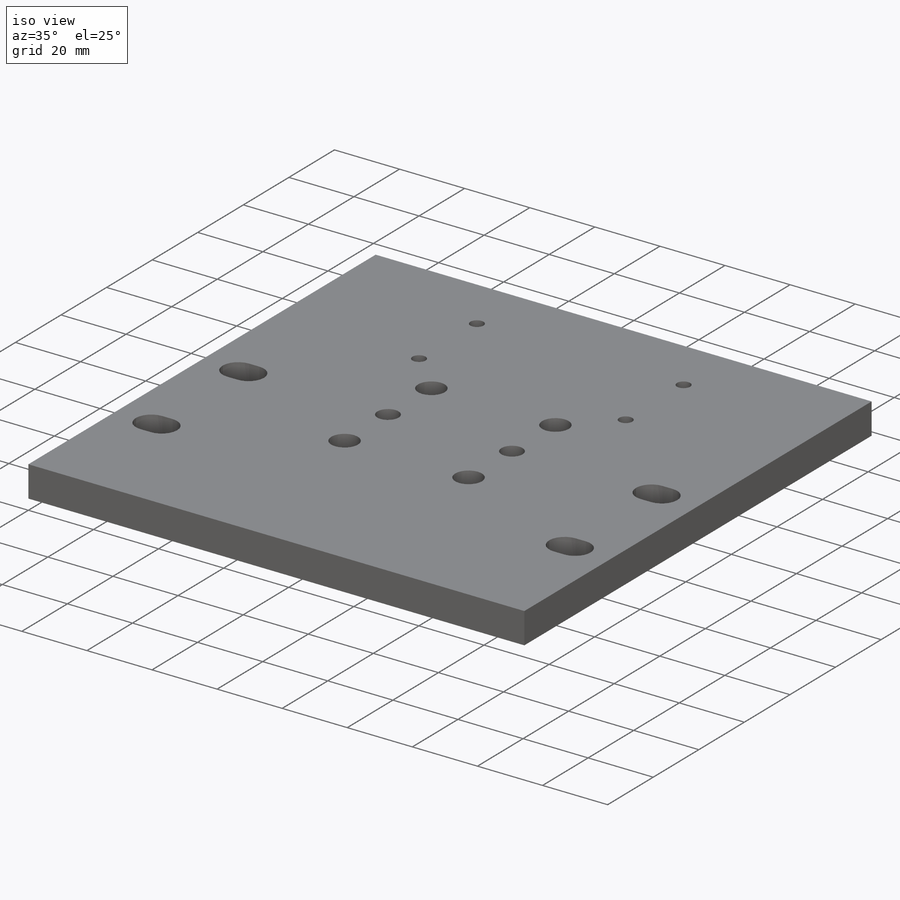
[diagram: iso view]
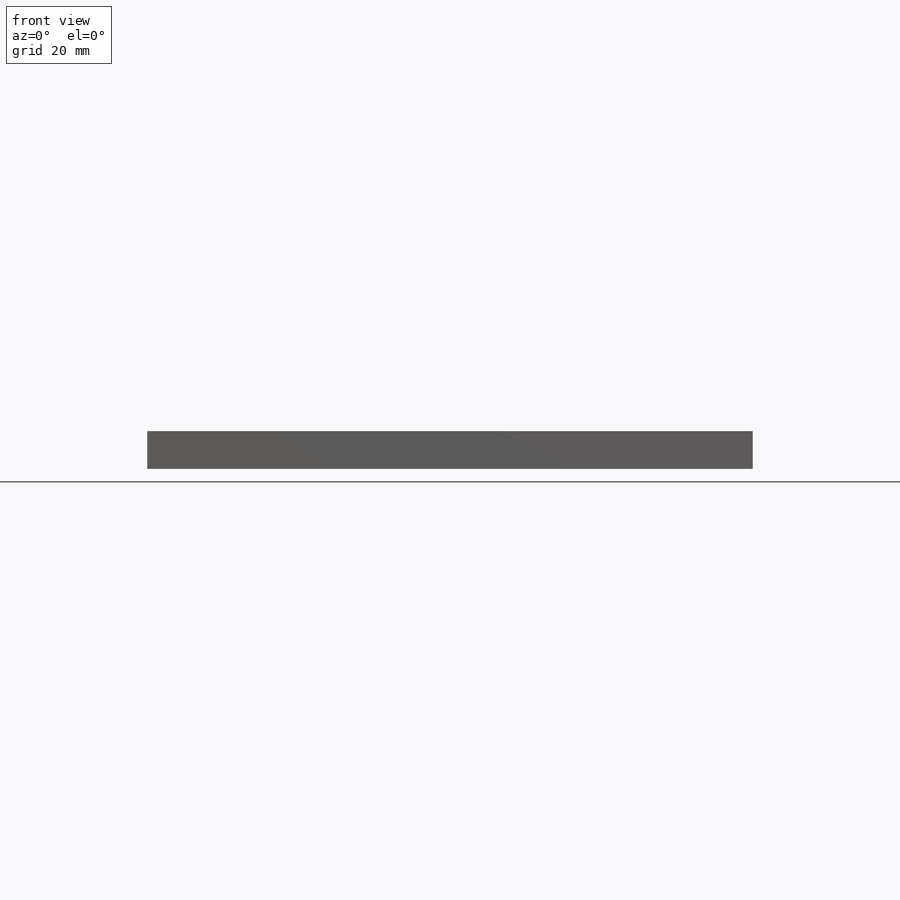
[diagram: front view]
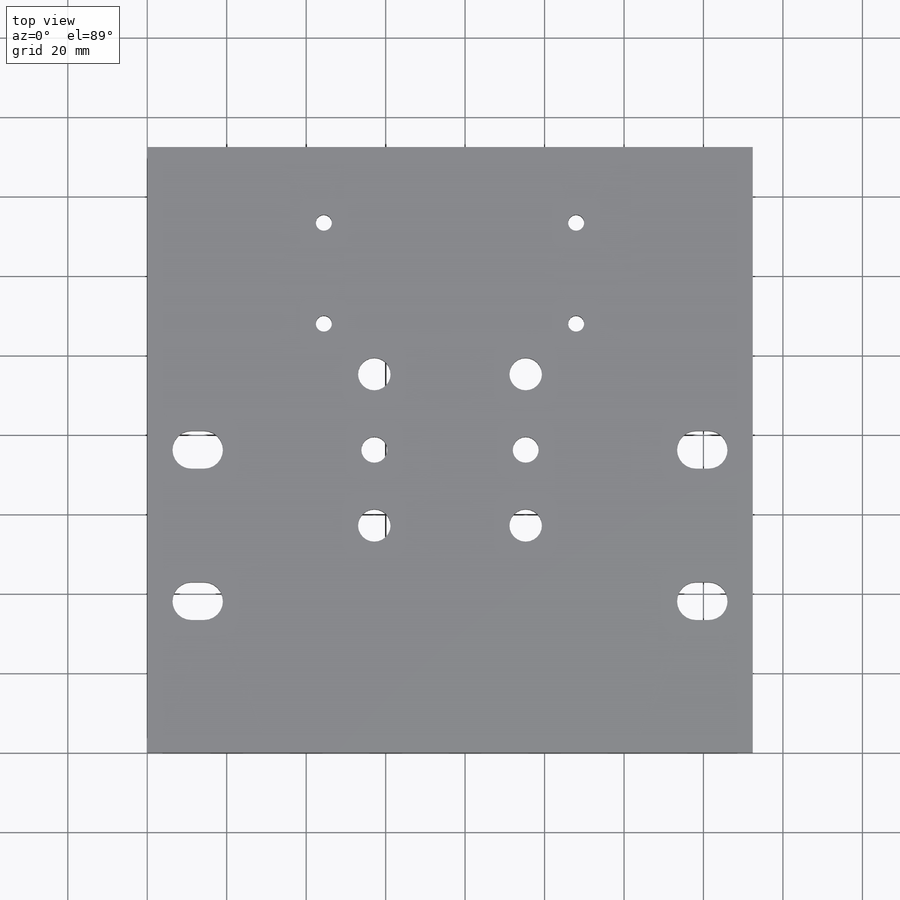
[diagram: top view]
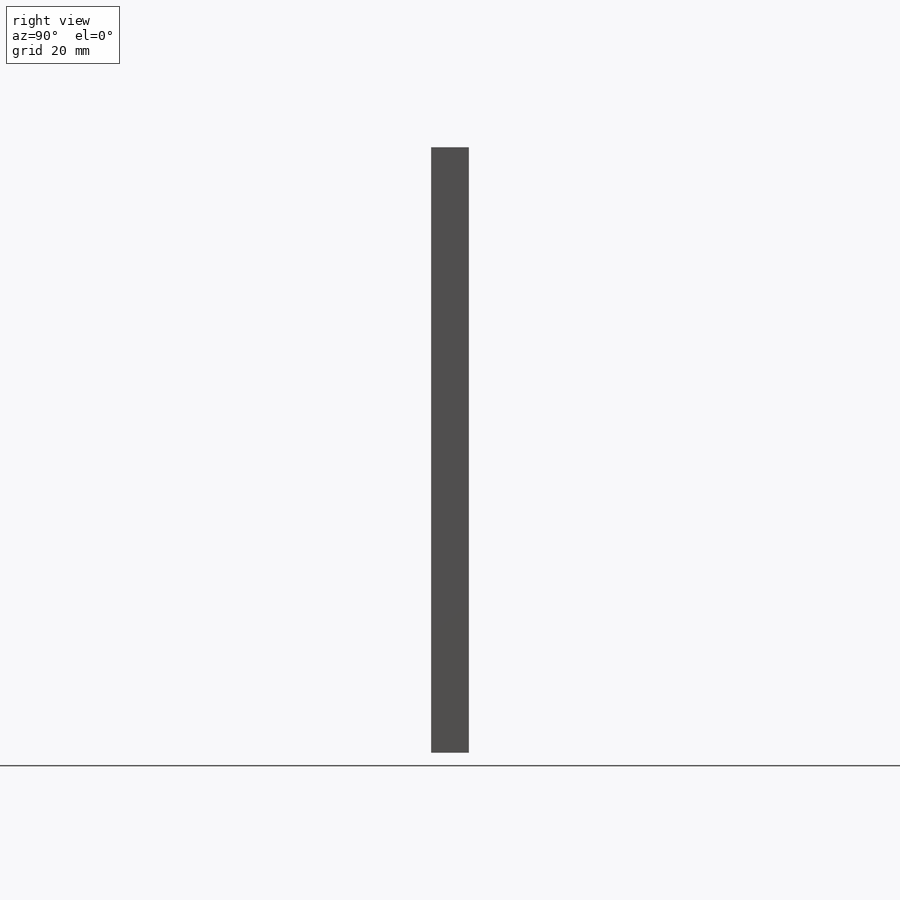
[diagram: right view]
SOLIDWORKS PART (.sldprt)
format: sldprt  version: not decoded by parser v0  size: 370,176 bytes
history: native  units: mm
features: sketch x7, thread x6, cut_extrude x2, hole x2, material x1, extrude x1 (+12 scaffold rows collapsed)
feature tree (31):
  scaffold x12  (default folders/planes/origin — collapsed)
  material  "Material <not specified>"
  sketch  "Sketch1"  dims[D1=152.4mm D2=152.4mm]
  extrude  "Extrude1"  Depth=9.525mm
  sketch  "Sketch2"  dims[c1.D3=9.5504mm c1.D4=9.5504mm c1.D6=4.7625mm c1.D1=127.0mm c1.D2=63.5mm c2.D4=38.1mm c2.D5=12.7mm c2.D7=57.15mm c2.D3=3.175mm]
  cut_extrude  "Cut-Extrude1"  [1 undecoded]
  hole  "#10-32 Tapped Hole1"  Diameter=4.0386mm Depth=13.6144mm
  sketch  "Sketch4"  dims[D1=25.4mm D2=63.5mm D3=31.75mm]
  sketch  "Sketch3"  dims[hole-wizard template sketch: 47 standard entries collapsed; hole parameters kept: c15.Tap Drill Depth=13.6144mm c15.D3=~14.816244mm c15.Drill Angle=118.0deg]
  thread  "Hole Thread1"  Diameter=9.525mm  [1 undecoded]
  thread  "Hole Thread2"  Diameter=9.525mm  [1 undecoded]
  thread  "Hole Thread3"  Diameter=9.525mm  [1 undecoded]
  thread  "Hole Thread4"  Diameter=9.525mm  [1 undecoded]
  sketch  "Sketch5"  dims[c1.D3=8.1915mm c1.D1=38.1mm c1.D2=38.1mm c2.D3=38.1mm]
  cut_extrude  "Cut-Extrude2"  [1 undecoded]
  hole  "5/16-18 Tapped Hole1"  Diameter=6.5278mm Depth=22.9362mm
  sketch  "Sketch7"  dims[D1=38.1mm]
  sketch  "Sketch6"  dims[hole-wizard template sketch: 47 standard entries collapsed; hole parameters kept: c15.Tap Drill Depth=22.9362mm c15.D3=~14.816244mm c15.Drill Angle=118.0deg]
  thread  "Hole Thread5"  Diameter=9.525mm  [1 undecoded]
  thread  "Hole Thread6"  Diameter=9.525mm  [1 undecoded]
decode coverage: 16 of 18 modeling features carry decoded parameters
note: ~ marks probable driven/reference dimensions
note: 8 parameter values undecoded
note: suppression state not decoded; provenance and decode notes live in map.json
